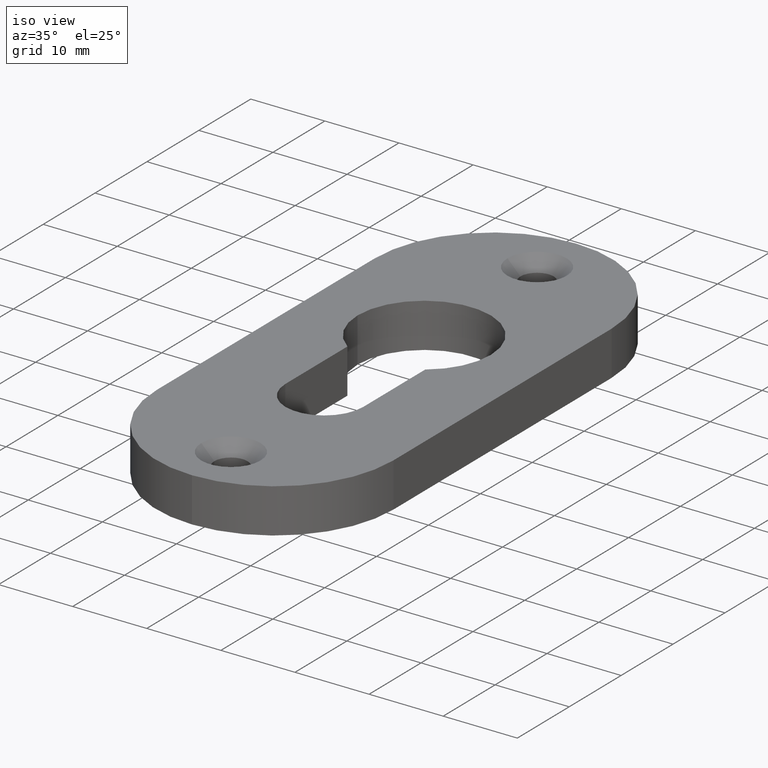
[diagram: clean part render]
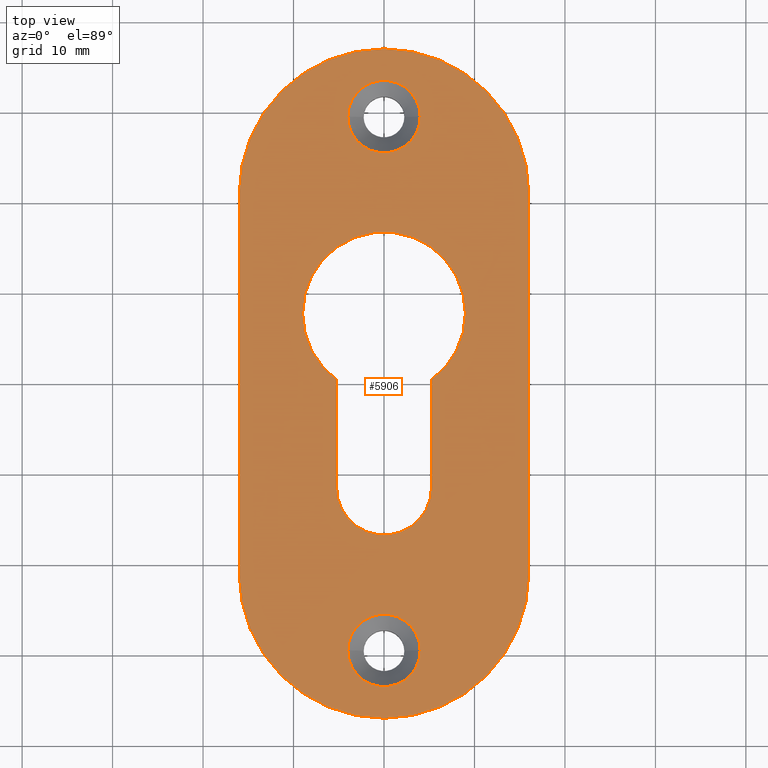
[diagram: tour spotlight — one face highlighted and labeled with its STEP entity id]
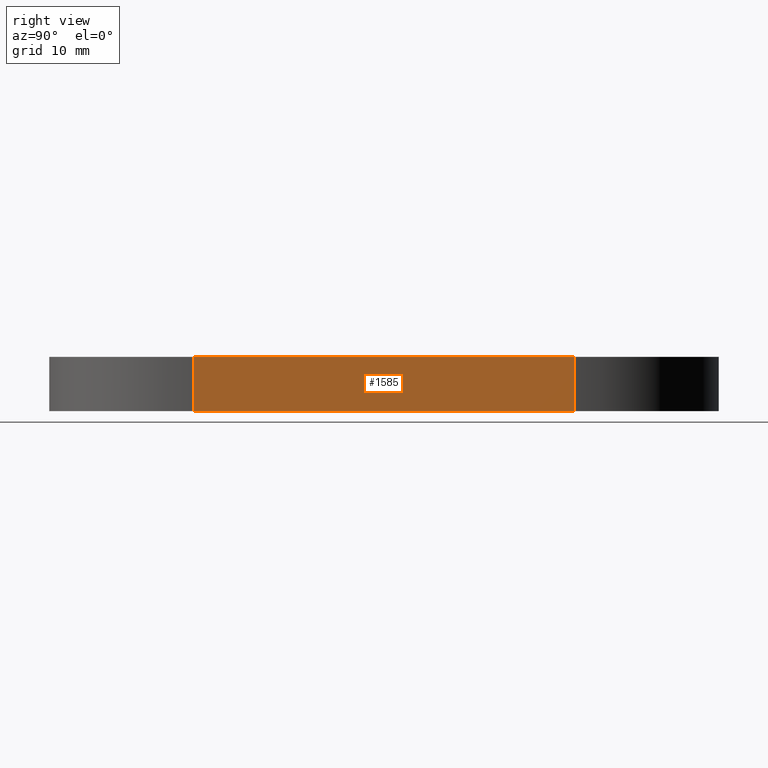
[diagram: tour spotlight — one face highlighted and labeled with its STEP entity id]
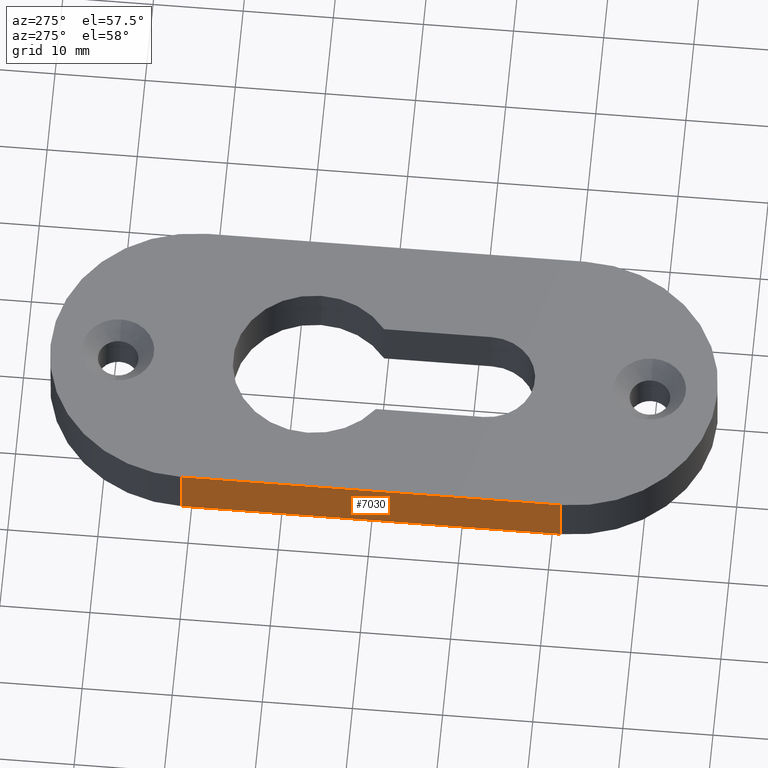
[diagram: tour spotlight — one face highlighted and labeled with its STEP entity id]
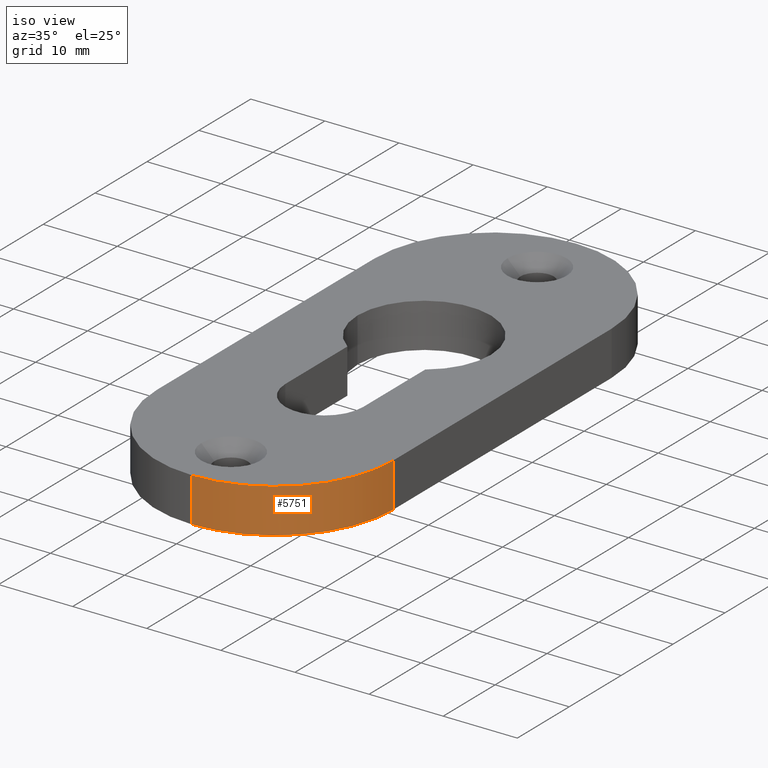
[diagram: tour spotlight — one face highlighted and labeled with its STEP entity id]
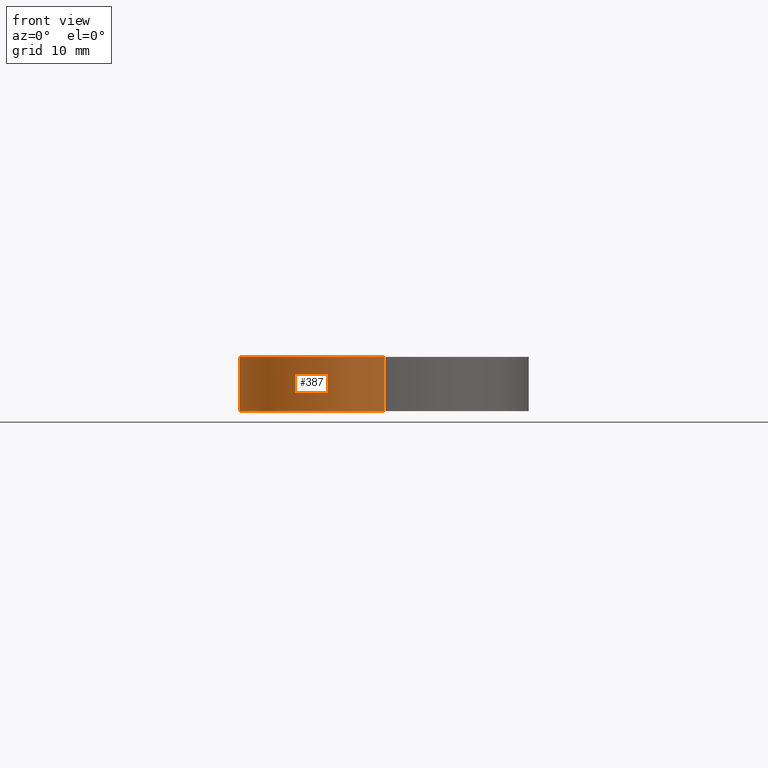
[diagram: tour spotlight — one face highlighted and labeled with its STEP entity id]
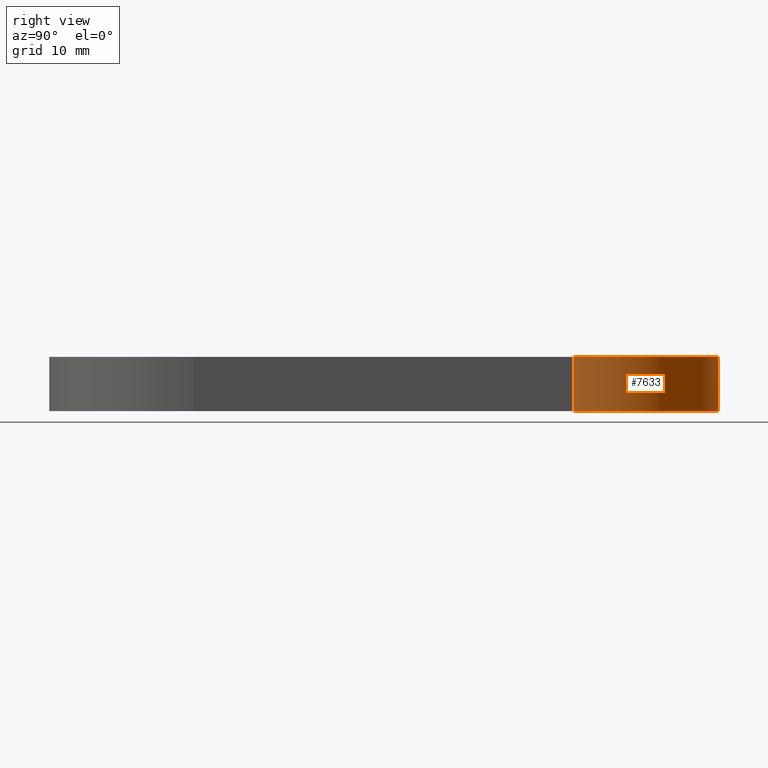
[diagram: tour spotlight — one face highlighted and labeled with its STEP entity id]
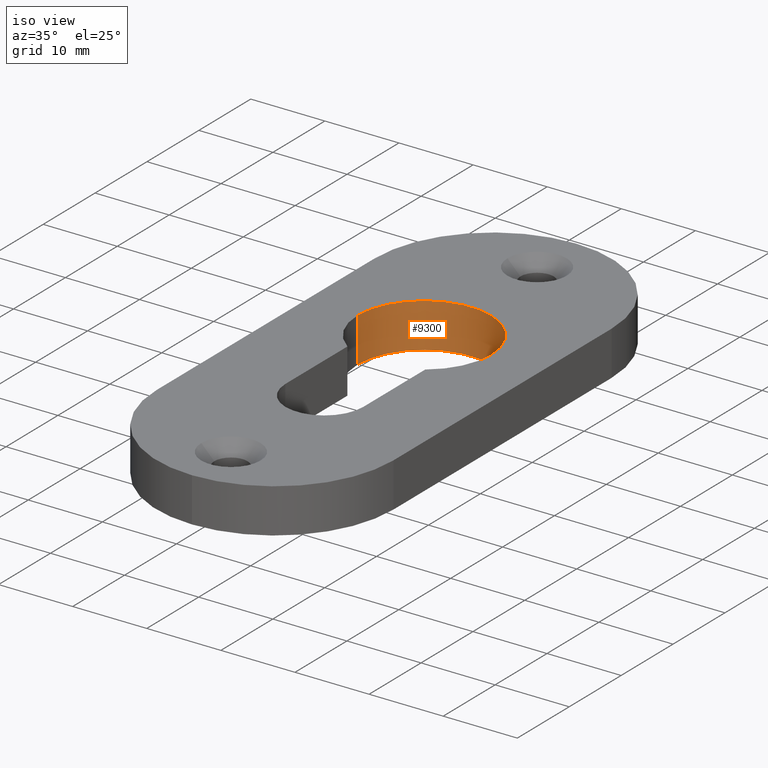
[diagram: tour spotlight — one face highlighted and labeled with its STEP entity id]
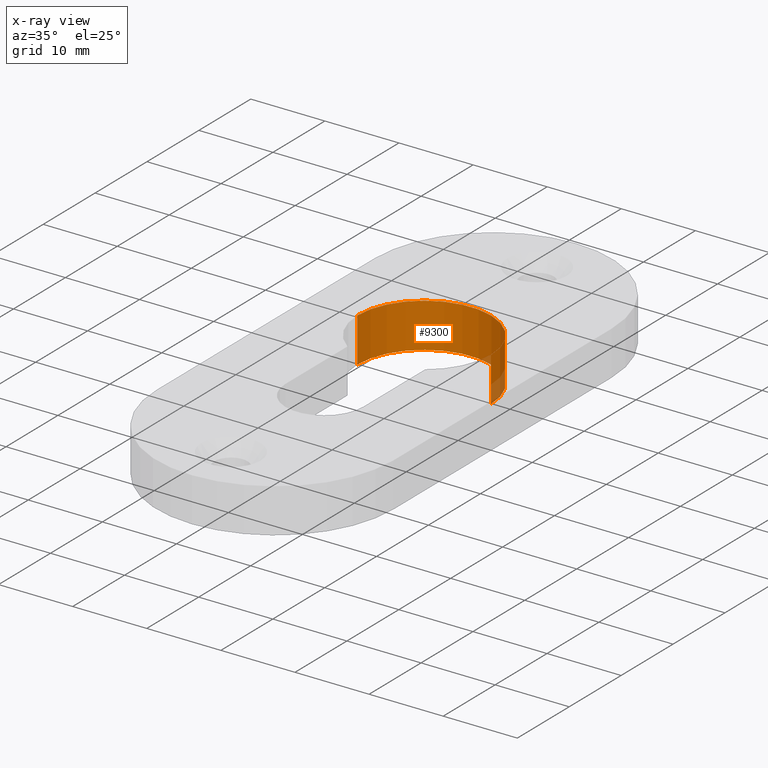
[diagram: x-ray of the same camera — body ghosted, this tour face saturated]
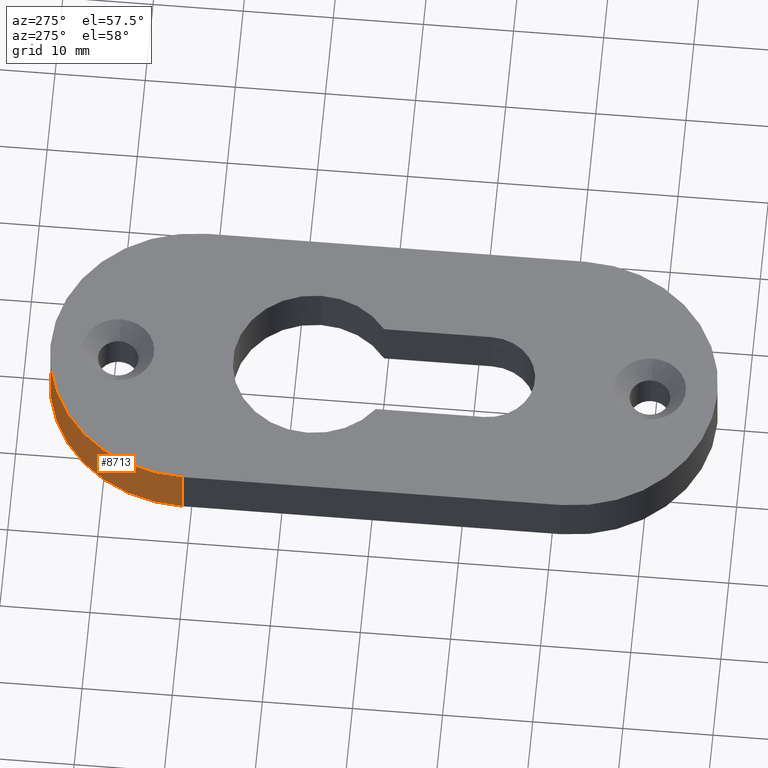
[diagram: tour spotlight — one face highlighted and labeled with its STEP entity id]
A machine part: a face-by-face anatomy tour. The part has 192 B-rep faces; the first image is the clean iso view, then the 8 largest visible faces are spotlighted one at a time (largest first), each with its STEP entity span.

Face 1 — top view, entity #5906. In plain terms, the highlighted planar face has unit normal (-0, 0, 1).
Definition (entity closure, byte-faithful):
#15 = EDGE_CURVE ( 'NONE', #9957, #5316, #8439, .T. ) ;
#37 = CIRCLE ( 'NONE', #7569, 5.250000000000001800 ) ;
#210 = CARTESIAN_POINT ( 'NONE',  ( 7.501506923142949900E-016, 20.99999999999999600, 6.000000000000000000 ) ) ;
#245 = DIRECTION ( 'NONE',  ( 1.000000000000000000, 0.0000000000000000000, 0.0000000000000000000 ) ) ;
#278 = CIRCLE ( 'NONE', #3665, 8.999999999999998200 ) ;
#324 = VECTOR ( 'NONE', #423, 1000.000000000000000 ) ;
#406 = VECTOR ( 'NONE', #2968, 1000.000000000000000 ) ;
#409 = EDGE_CURVE ( 'NONE', #4486, #8543, #5610, .T. ) ;
#423 = DIRECTION ( 'NONE',  ( 4.688441826964343700E-017, -1.000000000000000000, 0.0000000000000000000 ) ) ;
#551 = EDGE_LOOP ( 'NONE', ( #3701, #3144, #8468, #9737, #8320, #3300 ) ) ;
#555 = VERTEX_POINT ( 'NONE', #9657 ) ;
#571 = CIRCLE ( 'NONE', #1646, 4.000000000000003600 ) ;
#610 = AXIS2_PLACEMENT_3D ( 'NONE', #10126, #5369, #4509 ) ;
#672 = EDGE_CURVE ( 'NONE', #1767, #9563, #2412, .T. ) ;
#692 = VERTEX_POINT ( 'NONE', #7104 ) ;
#806 = CARTESIAN_POINT ( 'NONE',  ( 1.576732753902216800E-015, 7.750000000000001800, 6.000000000000000000 ) ) ;
#959 = EDGE_CURVE ( 'NONE', #1495, #2372, #5102, .T. ) ;
#1301 = EDGE_LOOP ( 'NONE', ( #3180, #5819 ) ) ;
#1479 = LINE ( 'NONE', #3137, #8104 ) ;
#1487 = EDGE_CURVE ( 'NONE', #692, #1767, #278, .T. ) ;
#1495 = VERTEX_POINT ( 'NONE', #5667 ) ;
#1529 = CIRCLE ( 'NONE', #10240, 16.00000000000000000 ) ;
#1646 = AXIS2_PLACEMENT_3D ( 'NONE', #3102, #9362, #10471 ) ;
#1686 = EDGE_CURVE ( 'NONE', #555, #3209, #1918, .T. ) ;
#1767 = VERTEX_POINT ( 'NONE', #5138 ) ;
#1883 = CIRCLE ( 'NONE', #610, 16.00000000000000000 ) ;
#1885 = EDGE_CURVE ( 'NONE', #7000, #1495, #37, .T. ) ;
#1918 = CIRCLE ( 'NONE', #4988, 16.00000000000000000 ) ;
#1963 = CIRCLE ( 'NONE', #2314, 4.000000000000003600 ) ;
#2043 = CARTESIAN_POINT ( 'NONE',  ( 0.0000000000000000000, 20.99999999999999600, 6.000000000000000000 ) ) ;
#2101 = CIRCLE ( 'NONE', #3656, 16.00000000000000000 ) ;
#2242 = AXIS2_PLACEMENT_3D ( 'NONE', #7933, #8767, #3863 ) ;
#2306 = DIRECTION ( 'NONE',  ( -0.0000000000000000000, 0.0000000000000000000, 1.000000000000000000 ) ) ;
#2314 = AXIS2_PLACEMENT_3D ( 'NONE', #7124, #4632, #3122 ) ;
#2372 = VERTEX_POINT ( 'NONE', #3607 ) ;
#2412 = CIRCLE ( 'NONE', #2242, 8.999999999999998200 ) ;
#2575 = CARTESIAN_POINT ( 'NONE',  ( 4.000000000000003600, -29.50000000000000000, 6.000000000000000000 ) ) ;
#2618 = FACE_OUTER_BOUND ( 'NONE', #3283, .T. ) ;
#2625 = EDGE_CURVE ( 'NONE', #8560, #6281, #1529, .T. ) ;
#2925 = CARTESIAN_POINT ( 'NONE',  ( 16.00000000000000000, 37.00000000000000000, 6.000000000000000000 ) ) ;
#2959 = LINE ( 'NONE', #10307, #324 ) ;
#2964 = CARTESIAN_POINT ( 'NONE',  ( 0.0000000000000000000, 29.50000000000000000, 6.000000000000000000 ) ) ;
#2968 = DIRECTION ( 'NONE',  ( -0.0000000000000000000, 1.000000000000000000, -0.0000000000000000000 ) ) ;
#3102 = CARTESIAN_POINT ( 'NONE',  ( 0.0000000000000000000, 29.50000000000000000, 6.000000000000000000 ) ) ;
#3109 = CIRCLE ( 'NONE', #10175, 4.000000000000003600 ) ;
#3122 = DIRECTION ( 'NONE',  ( 1.000000000000000000, 0.0000000000000000000, 0.0000000000000000000 ) ) ;
#3123 = DIRECTION ( 'NONE',  ( 1.000000000000000000, 0.0000000000000000000, 0.0000000000000000000 ) ) ;
#3137 = CARTESIAN_POINT ( 'NONE',  ( -5.250000000000001800, -11.50000000000000200, 6.000000000000000000 ) ) ;
#3144 = ORIENTED_EDGE ( 'NONE', *, *, #1885, .F. ) ;
#3180 = ORIENTED_EDGE ( 'NONE', *, *, #7485, .T. ) ;
#3209 = VERTEX_POINT ( 'NONE', #8442 ) ;
#3283 = EDGE_LOOP ( 'NONE', ( #9678, #3339, #8783, #3480, #9173, #9067 ) ) ;
#3300 = ORIENTED_EDGE ( 'NONE', *, *, #7817, .F. ) ;
#3339 = ORIENTED_EDGE ( 'NONE', *, *, #4749, .T. ) ;
#3480 = ORIENTED_EDGE ( 'NONE', *, *, #6473, .T. ) ;
#3523 = DIRECTION ( 'NONE',  ( -0.0000000000000000000, 0.0000000000000000000, 1.000000000000000000 ) ) ;
#3607 = CARTESIAN_POINT ( 'NONE',  ( 5.250000000000000000, 0.4399042413932808800, 6.000000000000000000 ) ) ;
#3656 = AXIS2_PLACEMENT_3D ( 'NONE', #2043, #9422, #5388 ) ;
#3665 = AXIS2_PLACEMENT_3D ( 'NONE', #806, #9811, #4917 ) ;
#3700 = CARTESIAN_POINT ( 'NONE',  ( -7.041719095097284800E-016, -11.50000000000000200, 6.000000000000000000 ) ) ;
#3701 = ORIENTED_EDGE ( 'NONE', *, *, #959, .F. ) ;
#3756 = FACE_BOUND ( 'NONE', #551, .T. ) ;
#3863 = DIRECTION ( 'NONE',  ( 1.000000000000000000, 0.0000000000000000000, 0.0000000000000000000 ) ) ;
#3966 = CARTESIAN_POINT ( 'NONE',  ( 5.250000000000000000, 0.4399042413932808800, 6.000000000000000000 ) ) ;
#4118 = CARTESIAN_POINT ( 'NONE',  ( 16.00000000000000000, 20.99999999999999600, 6.000000000000000000 ) ) ;
#4486 = VERTEX_POINT ( 'NONE', #10267 ) ;
#4509 = DIRECTION ( 'NONE',  ( 1.000000000000000000, 0.0000000000000000000, 0.0000000000000000000 ) ) ;
#4529 = DIRECTION ( 'NONE',  ( 1.000000000000000000, 0.0000000000000000000, 0.0000000000000000000 ) ) ;
#4632 = DIRECTION ( 'NONE',  ( 0.0000000000000000000, -0.0000000000000000000, -1.000000000000000000 ) ) ;
#4662 = FACE_BOUND ( 'NONE', #7414, .T. ) ;
#4749 = EDGE_CURVE ( 'NONE', #6281, #4486, #1883, .T. ) ;
#4873 = DIRECTION ( 'NONE',  ( -1.452878884876534100E-016, -1.000000000000000000, -0.0000000000000000000 ) ) ;
#4917 = DIRECTION ( 'NONE',  ( 1.000000000000000000, 0.0000000000000000000, 0.0000000000000000000 ) ) ;
#4962 = AXIS2_PLACEMENT_3D ( 'NONE', #2964, #9590, #5518 ) ;
#4988 = AXIS2_PLACEMENT_3D ( 'NONE', #210, #3523, #245 ) ;
#5057 = VERTEX_POINT ( 'NONE', #2575 ) ;
#5102 = LINE ( 'NONE', #3966, #8943 ) ;
#5138 = CARTESIAN_POINT ( 'NONE',  ( -8.999999999999996400, 7.750000000000001800, 6.000000000000000000 ) ) ;
#5316 = VERTEX_POINT ( 'NONE', #9001 ) ;
#5369 = DIRECTION ( 'NONE',  ( -0.0000000000000000000, 0.0000000000000000000, 1.000000000000000000 ) ) ;
#5388 = DIRECTION ( 'NONE',  ( 1.000000000000000000, 0.0000000000000000000, 0.0000000000000000000 ) ) ;
#5518 = DIRECTION ( 'NONE',  ( 1.000000000000000000, 0.0000000000000000000, 0.0000000000000000000 ) ) ;
#5610 = LINE ( 'NONE', #2925, #406 ) ;
#5642 = DIRECTION ( 'NONE',  ( 1.000000000000000000, 0.0000000000000000000, 0.0000000000000000000 ) ) ;
#5667 = CARTESIAN_POINT ( 'NONE',  ( 5.250000000000001800, -11.50000000000000200, 6.000000000000000000 ) ) ;
#5796 = DIRECTION ( 'NONE',  ( 1.000000000000000000, 0.0000000000000000000, 0.0000000000000000000 ) ) ;
#5819 = ORIENTED_EDGE ( 'NONE', *, *, #10095, .T. ) ;
#5870 = DIRECTION ( 'NONE',  ( -0.0000000000000000000, 0.0000000000000000000, 1.000000000000000000 ) ) ;
#5906 = ADVANCED_FACE ( 'NONE', ( #9793, #4662, #2618, #3756 ), #6519, .T. ) ;
#6134 = CARTESIAN_POINT ( 'NONE',  ( -4.000000000000003600, -29.50000000000000000, 6.000000000000000000 ) ) ;
#6281 = VERTEX_POINT ( 'NONE', #9328 ) ;
#6473 = EDGE_CURVE ( 'NONE', #8543, #555, #2101, .T. ) ;
#6519 = PLANE ( 'NONE',  #8469 ) ;
#6571 = CARTESIAN_POINT ( 'NONE',  ( -5.250000000000001800, -11.50000000000000200, 6.000000000000000000 ) ) ;
#6581 = DIRECTION ( 'NONE',  ( 0.0000000000000000000, -0.0000000000000000000, -1.000000000000000000 ) ) ;
#6604 = DIRECTION ( 'NONE',  ( 0.0000000000000000000, 0.0000000000000000000, 1.000000000000000000 ) ) ;
#7000 = VERTEX_POINT ( 'NONE', #6571 ) ;
#7104 = CARTESIAN_POINT ( 'NONE',  ( 9.000000000000000000, 7.750000000000002700, 6.000000000000000000 ) ) ;
#7124 = CARTESIAN_POINT ( 'NONE',  ( 0.0000000000000000000, -29.50000000000000000, 6.000000000000000000 ) ) ;
#7225 = AXIS2_PLACEMENT_3D ( 'NONE', #8149, #6604, #5642 ) ;
#7351 = EDGE_CURVE ( 'NONE', #9563, #7000, #1479, .T. ) ;
#7402 = CARTESIAN_POINT ( 'NONE',  ( 0.0000000000000000000, -29.50000000000000000, 6.000000000000000000 ) ) ;
#7414 = EDGE_LOOP ( 'NONE', ( #8074, #9388 ) ) ;
#7485 = EDGE_CURVE ( 'NONE', #5057, #9188, #3109, .T. ) ;
#7569 = AXIS2_PLACEMENT_3D ( 'NONE', #3700, #9221, #4529 ) ;
#7702 = CIRCLE ( 'NONE', #7225, 8.999999999999998200 ) ;
#7817 = EDGE_CURVE ( 'NONE', #2372, #692, #7702, .T. ) ;
#7933 = CARTESIAN_POINT ( 'NONE',  ( 1.576732753902216800E-015, 7.750000000000001800, 6.000000000000000000 ) ) ;
#7945 = CARTESIAN_POINT ( 'NONE',  ( 3.469446951953614200E-015, -20.99999999999999600, 6.000000000000000000 ) ) ;
#8074 = ORIENTED_EDGE ( 'NONE', *, *, #10270, .T. ) ;
#8104 = VECTOR ( 'NONE', #4873, 1000.000000000000000 ) ;
#8149 = CARTESIAN_POINT ( 'NONE',  ( 1.576732753902216800E-015, 7.750000000000001800, 6.000000000000000000 ) ) ;
#8309 = CARTESIAN_POINT ( 'NONE',  ( 0.0000000000000000000, 0.0000000000000000000, 6.000000000000000000 ) ) ;
#8320 = ORIENTED_EDGE ( 'NONE', *, *, #1487, .F. ) ;
#8340 = CARTESIAN_POINT ( 'NONE',  ( -15.99999999999999600, -20.99999999999999600, 6.000000000000000000 ) ) ;
#8439 = CIRCLE ( 'NONE', #4962, 4.000000000000003600 ) ;
#8442 = CARTESIAN_POINT ( 'NONE',  ( -16.00000000000000000, 20.99999999999999600, 6.000000000000000000 ) ) ;
#8468 = ORIENTED_EDGE ( 'NONE', *, *, #7351, .F. ) ;
#8469 = AXIS2_PLACEMENT_3D ( 'NONE', #8309, #5870, #3123 ) ;
#8543 = VERTEX_POINT ( 'NONE', #4118 ) ;
#8560 = VERTEX_POINT ( 'NONE', #8340 ) ;
#8623 = CARTESIAN_POINT ( 'NONE',  ( -5.250000000000000000, 0.4399042413932808800, 6.000000000000000000 ) ) ;
#8767 = DIRECTION ( 'NONE',  ( 0.0000000000000000000, 0.0000000000000000000, 1.000000000000000000 ) ) ;
#8783 = ORIENTED_EDGE ( 'NONE', *, *, #409, .T. ) ;
#8943 = VECTOR ( 'NONE', #9685, 1000.000000000000000 ) ;
#9001 = CARTESIAN_POINT ( 'NONE',  ( 4.000000000000003600, 29.50000000000000000, 6.000000000000000000 ) ) ;
#9067 = ORIENTED_EDGE ( 'NONE', *, *, #10036, .T. ) ;
#9173 = ORIENTED_EDGE ( 'NONE', *, *, #1686, .T. ) ;
#9188 = VERTEX_POINT ( 'NONE', #6134 ) ;
#9221 = DIRECTION ( 'NONE',  ( 0.0000000000000000000, 0.0000000000000000000, 1.000000000000000000 ) ) ;
#9284 = CARTESIAN_POINT ( 'NONE',  ( -4.000000000000003600, 29.50000000000000000, 6.000000000000000000 ) ) ;
#9328 = CARTESIAN_POINT ( 'NONE',  ( 3.469446951953614200E-015, -37.00000000000000000, 6.000000000000000000 ) ) ;
#9362 = DIRECTION ( 'NONE',  ( 0.0000000000000000000, -0.0000000000000000000, -1.000000000000000000 ) ) ;
#9388 = ORIENTED_EDGE ( 'NONE', *, *, #15, .T. ) ;
#9422 = DIRECTION ( 'NONE',  ( -0.0000000000000000000, 0.0000000000000000000, 1.000000000000000000 ) ) ;
#9511 = DIRECTION ( 'NONE',  ( 1.000000000000000000, 0.0000000000000000000, 0.0000000000000000000 ) ) ;
#9563 = VERTEX_POINT ( 'NONE', #8623 ) ;
#9590 = DIRECTION ( 'NONE',  ( 0.0000000000000000000, -0.0000000000000000000, -1.000000000000000000 ) ) ;
#9657 = CARTESIAN_POINT ( 'NONE',  ( 0.0000000000000000000, 37.00000000000000000, 6.000000000000000000 ) ) ;
#9678 = ORIENTED_EDGE ( 'NONE', *, *, #2625, .T. ) ;
#9685 = DIRECTION ( 'NONE',  ( -1.452878884876534100E-016, 1.000000000000000000, -0.0000000000000000000 ) ) ;
#9737 = ORIENTED_EDGE ( 'NONE', *, *, #672, .F. ) ;
#9793 = FACE_BOUND ( 'NONE', #1301, .T. ) ;
#9811 = DIRECTION ( 'NONE',  ( 0.0000000000000000000, 0.0000000000000000000, 1.000000000000000000 ) ) ;
#9957 = VERTEX_POINT ( 'NONE', #9284 ) ;
#10036 = EDGE_CURVE ( 'NONE', #3209, #8560, #2959, .T. ) ;
#10095 = EDGE_CURVE ( 'NONE', #9188, #5057, #1963, .T. ) ;
#10126 = CARTESIAN_POINT ( 'NONE',  ( 0.0000000000000000000, -20.99999999999999600, 6.000000000000000000 ) ) ;
#10175 = AXIS2_PLACEMENT_3D ( 'NONE', #7402, #6581, #5796 ) ;
#10240 = AXIS2_PLACEMENT_3D ( 'NONE', #7945, #2306, #9511 ) ;
#10267 = CARTESIAN_POINT ( 'NONE',  ( 16.00000000000000000, -20.99999999999999600, 6.000000000000000000 ) ) ;
#10270 = EDGE_CURVE ( 'NONE', #5316, #9957, #571, .T. ) ;
#10307 = CARTESIAN_POINT ( 'NONE',  ( -16.00000000000000000, 37.00000000000000000, 6.000000000000000000 ) ) ;
#10471 = DIRECTION ( 'NONE',  ( 1.000000000000000000, 0.0000000000000000000, 0.0000000000000000000 ) ) ;

Face 2 — right view, entity #1585. In plain terms, the highlighted planar face has unit normal (-1, 0, 0).
Definition (entity closure, byte-faithful):
#21 = ORIENTED_EDGE ( 'NONE', *, *, #9597, .T. ) ;
#69 = VERTEX_POINT ( 'NONE', #4767 ) ;
#202 = EDGE_CURVE ( 'NONE', #4486, #9030, #8182, .T. ) ;
#406 = VECTOR ( 'NONE', #2968, 1000.000000000000000 ) ;
#409 = EDGE_CURVE ( 'NONE', #4486, #8543, #5610, .T. ) ;
#852 = LINE ( 'NONE', #2850, #3095 ) ;
#1585 = ADVANCED_FACE ( 'NONE', ( #4448 ), #9091, .F. ) ;
#2326 = DIRECTION ( 'NONE',  ( 0.0000000000000000000, 0.0000000000000000000, -1.000000000000000000 ) ) ;
#2850 = CARTESIAN_POINT ( 'NONE',  ( 16.00000000000000000, 20.99999999999999600, 6.000000000000000000 ) ) ;
#2925 = CARTESIAN_POINT ( 'NONE',  ( 16.00000000000000000, 37.00000000000000000, 6.000000000000000000 ) ) ;
#2968 = DIRECTION ( 'NONE',  ( -0.0000000000000000000, 1.000000000000000000, -0.0000000000000000000 ) ) ;
#3095 = VECTOR ( 'NONE', #4397, 1000.000000000000000 ) ;
#3267 = DIRECTION ( 'NONE',  ( -0.0000000000000000000, 1.000000000000000000, -0.0000000000000000000 ) ) ;
#4118 = CARTESIAN_POINT ( 'NONE',  ( 16.00000000000000000, 20.99999999999999600, 6.000000000000000000 ) ) ;
#4256 = CARTESIAN_POINT ( 'NONE',  ( 16.00000000000000000, 37.00000000000000000, 6.000000000000000000 ) ) ;
#4397 = DIRECTION ( 'NONE',  ( -0.0000000000000000000, -0.0000000000000000000, 1.000000000000000000 ) ) ;
#4448 = FACE_OUTER_BOUND ( 'NONE', #7526, .T. ) ;
#4486 = VERTEX_POINT ( 'NONE', #10267 ) ;
#4767 = CARTESIAN_POINT ( 'NONE',  ( 16.00000000000000000, 20.99999999999999600, 0.0000000000000000000 ) ) ;
#4900 = LINE ( 'NONE', #7311, #9760 ) ;
#4980 = VECTOR ( 'NONE', #2326, 1000.000000000000000 ) ;
#5299 = EDGE_CURVE ( 'NONE', #9030, #69, #4900, .T. ) ;
#5610 = LINE ( 'NONE', #2925, #406 ) ;
#5805 = DIRECTION ( 'NONE',  ( 0.0000000000000000000, 0.0000000000000000000, 1.000000000000000000 ) ) ;
#5938 = AXIS2_PLACEMENT_3D ( 'NONE', #4256, #6726, #5805 ) ;
#6671 = CARTESIAN_POINT ( 'NONE',  ( 16.00000000000000000, -20.99999999999999600, 0.0000000000000000000 ) ) ;
#6726 = DIRECTION ( 'NONE',  ( -1.000000000000000000, 0.0000000000000000000, 0.0000000000000000000 ) ) ;
#7311 = CARTESIAN_POINT ( 'NONE',  ( 16.00000000000000000, 37.00000000000000000, 0.0000000000000000000 ) ) ;
#7526 = EDGE_LOOP ( 'NONE', ( #9988, #8272, #10237, #21 ) ) ;
#8122 = CARTESIAN_POINT ( 'NONE',  ( 16.00000000000000000, -20.99999999999999600, 6.000000000000000000 ) ) ;
#8182 = LINE ( 'NONE', #8122, #4980 ) ;
#8272 = ORIENTED_EDGE ( 'NONE', *, *, #202, .T. ) ;
#8543 = VERTEX_POINT ( 'NONE', #4118 ) ;
#9030 = VERTEX_POINT ( 'NONE', #6671 ) ;
#9091 = PLANE ( 'NONE',  #5938 ) ;
#9597 = EDGE_CURVE ( 'NONE', #69, #8543, #852, .T. ) ;
#9760 = VECTOR ( 'NONE', #3267, 1000.000000000000000 ) ;
#9988 = ORIENTED_EDGE ( 'NONE', *, *, #409, .F. ) ;
#10237 = ORIENTED_EDGE ( 'NONE', *, *, #5299, .T. ) ;
#10267 = CARTESIAN_POINT ( 'NONE',  ( 16.00000000000000000, -20.99999999999999600, 6.000000000000000000 ) ) ;

Face 3 — auxiliary view, entity #7030. In plain terms, the highlighted planar face has unit normal (1, 0, -0).
Definition (entity closure, byte-faithful):
#72 = EDGE_CURVE ( 'NONE', #5109, #430, #3308, .T. ) ;
#162 = VECTOR ( 'NONE', #8850, 1000.000000000000000 ) ;
#181 = DIRECTION ( 'NONE',  ( 1.000000000000000000, 4.688441826964343700E-017, -0.0000000000000000000 ) ) ;
#324 = VECTOR ( 'NONE', #423, 1000.000000000000000 ) ;
#423 = DIRECTION ( 'NONE',  ( 4.688441826964343700E-017, -1.000000000000000000, 0.0000000000000000000 ) ) ;
#430 = VERTEX_POINT ( 'NONE', #5656 ) ;
#696 = AXIS2_PLACEMENT_3D ( 'NONE', #10002, #181, #1865 ) ;
#734 = DIRECTION ( 'NONE',  ( 0.0000000000000000000, -0.0000000000000000000, 1.000000000000000000 ) ) ;
#1351 = LINE ( 'NONE', #8886, #10269 ) ;
#1865 = DIRECTION ( 'NONE',  ( -4.688441826964343700E-017, 1.000000000000000000, 0.0000000000000000000 ) ) ;
#2140 = VECTOR ( 'NONE', #734, 1000.000000000000000 ) ;
#2489 = ORIENTED_EDGE ( 'NONE', *, *, #10036, .F. ) ;
#2688 = EDGE_CURVE ( 'NONE', #430, #8560, #3942, .T. ) ;
#2868 = EDGE_LOOP ( 'NONE', ( #3808, #4047, #2489, #8017 ) ) ;
#2959 = LINE ( 'NONE', #10307, #324 ) ;
#3043 = CARTESIAN_POINT ( 'NONE',  ( -16.00000000000000000, 37.00000000000000000, 0.0000000000000000000 ) ) ;
#3209 = VERTEX_POINT ( 'NONE', #8442 ) ;
#3308 = LINE ( 'NONE', #3043, #162 ) ;
#3808 = ORIENTED_EDGE ( 'NONE', *, *, #72, .T. ) ;
#3942 = LINE ( 'NONE', #9742, #2140 ) ;
#4047 = ORIENTED_EDGE ( 'NONE', *, *, #2688, .T. ) ;
#5109 = VERTEX_POINT ( 'NONE', #5941 ) ;
#5656 = CARTESIAN_POINT ( 'NONE',  ( -15.99999999999999600, -20.99999999999999600, 0.0000000000000000000 ) ) ;
#5857 = PLANE ( 'NONE',  #696 ) ;
#5941 = CARTESIAN_POINT ( 'NONE',  ( -16.00000000000000000, 20.99999999999999600, 0.0000000000000000000 ) ) ;
#6106 = EDGE_CURVE ( 'NONE', #3209, #5109, #1351, .T. ) ;
#7030 = ADVANCED_FACE ( 'NONE', ( #10405 ), #5857, .F. ) ;
#8017 = ORIENTED_EDGE ( 'NONE', *, *, #6106, .T. ) ;
#8054 = DIRECTION ( 'NONE',  ( 0.0000000000000000000, 0.0000000000000000000, -1.000000000000000000 ) ) ;
#8340 = CARTESIAN_POINT ( 'NONE',  ( -15.99999999999999600, -20.99999999999999600, 6.000000000000000000 ) ) ;
#8442 = CARTESIAN_POINT ( 'NONE',  ( -16.00000000000000000, 20.99999999999999600, 6.000000000000000000 ) ) ;
#8560 = VERTEX_POINT ( 'NONE', #8340 ) ;
#8850 = DIRECTION ( 'NONE',  ( 4.688441826964343700E-017, -1.000000000000000000, 0.0000000000000000000 ) ) ;
#8886 = CARTESIAN_POINT ( 'NONE',  ( -16.00000000000000000, 20.99999999999999600, 6.000000000000000000 ) ) ;
#9742 = CARTESIAN_POINT ( 'NONE',  ( -15.99999999999999600, -20.99999999999999600, 6.000000000000000000 ) ) ;
#10002 = CARTESIAN_POINT ( 'NONE',  ( -16.00000000000000000, 37.00000000000000000, 6.000000000000000000 ) ) ;
#10036 = EDGE_CURVE ( 'NONE', #3209, #8560, #2959, .T. ) ;
#10269 = VECTOR ( 'NONE', #8054, 1000.000000000000000 ) ;
#10307 = CARTESIAN_POINT ( 'NONE',  ( -16.00000000000000000, 37.00000000000000000, 6.000000000000000000 ) ) ;
#10405 = FACE_OUTER_BOUND ( 'NONE', #2868, .T. ) ;

Face 4 — iso view, entity #5751. In plain terms, the highlighted cylindrical surface (partial cylindrical patch) has radius 16 mm, axis along (0, 0, -1).
Definition (entity closure, byte-faithful):
#83 = AXIS2_PLACEMENT_3D ( 'NONE', #650, #5583, #3829 ) ;
#202 = EDGE_CURVE ( 'NONE', #4486, #9030, #8182, .T. ) ;
#610 = AXIS2_PLACEMENT_3D ( 'NONE', #10126, #5369, #4509 ) ;
#650 = CARTESIAN_POINT ( 'NONE',  ( 0.0000000000000000000, -20.99999999999999600, 6.000000000000000000 ) ) ;
#907 = CARTESIAN_POINT ( 'NONE',  ( 3.469446951953614200E-015, -37.00000000000000000, 0.0000000000000000000 ) ) ;
#1407 = EDGE_LOOP ( 'NONE', ( #3802, #7801, #9354, #8028 ) ) ;
#1549 = VERTEX_POINT ( 'NONE', #907 ) ;
#1881 = CARTESIAN_POINT ( 'NONE',  ( 0.0000000000000000000, -20.99999999999999600, 0.0000000000000000000 ) ) ;
#1883 = CIRCLE ( 'NONE', #610, 16.00000000000000000 ) ;
#2326 = DIRECTION ( 'NONE',  ( 0.0000000000000000000, 0.0000000000000000000, -1.000000000000000000 ) ) ;
#2358 = EDGE_CURVE ( 'NONE', #6281, #1549, #4839, .T. ) ;
#3602 = AXIS2_PLACEMENT_3D ( 'NONE', #1881, #5087, #5056 ) ;
#3673 = VECTOR ( 'NONE', #8415, 1000.000000000000000 ) ;
#3802 = ORIENTED_EDGE ( 'NONE', *, *, #4749, .F. ) ;
#3829 = DIRECTION ( 'NONE',  ( -1.000000000000000000, 0.0000000000000000000, 0.0000000000000000000 ) ) ;
#4158 = CYLINDRICAL_SURFACE ( 'NONE', #83, 16.00000000000000000 ) ;
#4486 = VERTEX_POINT ( 'NONE', #10267 ) ;
#4509 = DIRECTION ( 'NONE',  ( 1.000000000000000000, 0.0000000000000000000, 0.0000000000000000000 ) ) ;
#4749 = EDGE_CURVE ( 'NONE', #6281, #4486, #1883, .T. ) ;
#4839 = LINE ( 'NONE', #6587, #3673 ) ;
#4980 = VECTOR ( 'NONE', #2326, 1000.000000000000000 ) ;
#5056 = DIRECTION ( 'NONE',  ( 1.000000000000000000, 0.0000000000000000000, 0.0000000000000000000 ) ) ;
#5087 = DIRECTION ( 'NONE',  ( 0.0000000000000000000, -0.0000000000000000000, -1.000000000000000000 ) ) ;
#5369 = DIRECTION ( 'NONE',  ( -0.0000000000000000000, 0.0000000000000000000, 1.000000000000000000 ) ) ;
#5583 = DIRECTION ( 'NONE',  ( 0.0000000000000000000, 0.0000000000000000000, -1.000000000000000000 ) ) ;
#5751 = ADVANCED_FACE ( 'NONE', ( #9271 ), #4158, .T. ) ;
#6281 = VERTEX_POINT ( 'NONE', #9328 ) ;
#6587 = CARTESIAN_POINT ( 'NONE',  ( 3.469446951953614200E-015, -37.00000000000000000, 6.000000000000000000 ) ) ;
#6671 = CARTESIAN_POINT ( 'NONE',  ( 16.00000000000000000, -20.99999999999999600, 0.0000000000000000000 ) ) ;
#7801 = ORIENTED_EDGE ( 'NONE', *, *, #2358, .T. ) ;
#8028 = ORIENTED_EDGE ( 'NONE', *, *, #202, .F. ) ;
#8122 = CARTESIAN_POINT ( 'NONE',  ( 16.00000000000000000, -20.99999999999999600, 6.000000000000000000 ) ) ;
#8182 = LINE ( 'NONE', #8122, #4980 ) ;
#8415 = DIRECTION ( 'NONE',  ( -0.0000000000000000000, 0.0000000000000000000, -1.000000000000000000 ) ) ;
#9030 = VERTEX_POINT ( 'NONE', #6671 ) ;
#9271 = FACE_OUTER_BOUND ( 'NONE', #1407, .T. ) ;
#9328 = CARTESIAN_POINT ( 'NONE',  ( 3.469446951953614200E-015, -37.00000000000000000, 6.000000000000000000 ) ) ;
#9354 = ORIENTED_EDGE ( 'NONE', *, *, #9466, .F. ) ;
#9466 = EDGE_CURVE ( 'NONE', #9030, #1549, #10393, .T. ) ;
#10126 = CARTESIAN_POINT ( 'NONE',  ( 0.0000000000000000000, -20.99999999999999600, 6.000000000000000000 ) ) ;
#10267 = CARTESIAN_POINT ( 'NONE',  ( 16.00000000000000000, -20.99999999999999600, 6.000000000000000000 ) ) ;
#10393 = CIRCLE ( 'NONE', #3602, 16.00000000000000000 ) ;

Face 5 — front view, entity #387. In plain terms, the highlighted cylindrical surface (partial cylindrical patch) has radius 16 mm, axis along (-0, 0, -1).
Definition (entity closure, byte-faithful):
#387 = ADVANCED_FACE ( 'NONE', ( #6386 ), #1540, .T. ) ;
#430 = VERTEX_POINT ( 'NONE', #5656 ) ;
#734 = DIRECTION ( 'NONE',  ( 0.0000000000000000000, -0.0000000000000000000, 1.000000000000000000 ) ) ;
#907 = CARTESIAN_POINT ( 'NONE',  ( 3.469446951953614200E-015, -37.00000000000000000, 0.0000000000000000000 ) ) ;
#1529 = CIRCLE ( 'NONE', #10240, 16.00000000000000000 ) ;
#1540 = CYLINDRICAL_SURFACE ( 'NONE', #6275, 16.00000000000000000 ) ;
#1549 = VERTEX_POINT ( 'NONE', #907 ) ;
#1738 = EDGE_LOOP ( 'NONE', ( #6670, #5376, #1755, #3126 ) ) ;
#1755 = ORIENTED_EDGE ( 'NONE', *, *, #2688, .F. ) ;
#2123 = DIRECTION ( 'NONE',  ( -0.0000000000000000000, 0.0000000000000000000, -1.000000000000000000 ) ) ;
#2140 = VECTOR ( 'NONE', #734, 1000.000000000000000 ) ;
#2306 = DIRECTION ( 'NONE',  ( -0.0000000000000000000, 0.0000000000000000000, 1.000000000000000000 ) ) ;
#2358 = EDGE_CURVE ( 'NONE', #6281, #1549, #4839, .T. ) ;
#2625 = EDGE_CURVE ( 'NONE', #8560, #6281, #1529, .T. ) ;
#2688 = EDGE_CURVE ( 'NONE', #430, #8560, #3942, .T. ) ;
#3005 = CARTESIAN_POINT ( 'NONE',  ( 3.469446951953614200E-015, -20.99999999999999600, 6.000000000000000000 ) ) ;
#3126 = ORIENTED_EDGE ( 'NONE', *, *, #6534, .F. ) ;
#3455 = AXIS2_PLACEMENT_3D ( 'NONE', #4560, #10274, #7136 ) ;
#3673 = VECTOR ( 'NONE', #8415, 1000.000000000000000 ) ;
#3942 = LINE ( 'NONE', #9742, #2140 ) ;
#4560 = CARTESIAN_POINT ( 'NONE',  ( 3.469446951953614200E-015, -20.99999999999999600, 0.0000000000000000000 ) ) ;
#4839 = LINE ( 'NONE', #6587, #3673 ) ;
#5376 = ORIENTED_EDGE ( 'NONE', *, *, #2625, .F. ) ;
#5656 = CARTESIAN_POINT ( 'NONE',  ( -15.99999999999999600, -20.99999999999999600, 0.0000000000000000000 ) ) ;
#6275 = AXIS2_PLACEMENT_3D ( 'NONE', #3005, #2123, #9442 ) ;
#6281 = VERTEX_POINT ( 'NONE', #9328 ) ;
#6386 = FACE_OUTER_BOUND ( 'NONE', #1738, .T. ) ;
#6534 = EDGE_CURVE ( 'NONE', #1549, #430, #7723, .T. ) ;
#6587 = CARTESIAN_POINT ( 'NONE',  ( 3.469446951953614200E-015, -37.00000000000000000, 6.000000000000000000 ) ) ;
#6670 = ORIENTED_EDGE ( 'NONE', *, *, #2358, .F. ) ;
#7136 = DIRECTION ( 'NONE',  ( 1.000000000000000000, 0.0000000000000000000, 0.0000000000000000000 ) ) ;
#7723 = CIRCLE ( 'NONE', #3455, 16.00000000000000000 ) ;
#7945 = CARTESIAN_POINT ( 'NONE',  ( 3.469446951953614200E-015, -20.99999999999999600, 6.000000000000000000 ) ) ;
#8340 = CARTESIAN_POINT ( 'NONE',  ( -15.99999999999999600, -20.99999999999999600, 6.000000000000000000 ) ) ;
#8415 = DIRECTION ( 'NONE',  ( -0.0000000000000000000, 0.0000000000000000000, -1.000000000000000000 ) ) ;
#8560 = VERTEX_POINT ( 'NONE', #8340 ) ;
#9328 = CARTESIAN_POINT ( 'NONE',  ( 3.469446951953614200E-015, -37.00000000000000000, 6.000000000000000000 ) ) ;
#9442 = DIRECTION ( 'NONE',  ( -1.000000000000000000, 0.0000000000000000000, 0.0000000000000000000 ) ) ;
#9511 = DIRECTION ( 'NONE',  ( 1.000000000000000000, 0.0000000000000000000, 0.0000000000000000000 ) ) ;
#9742 = CARTESIAN_POINT ( 'NONE',  ( -15.99999999999999600, -20.99999999999999600, 6.000000000000000000 ) ) ;
#10240 = AXIS2_PLACEMENT_3D ( 'NONE', #7945, #2306, #9511 ) ;
#10274 = DIRECTION ( 'NONE',  ( 0.0000000000000000000, -0.0000000000000000000, -1.000000000000000000 ) ) ;

Face 6 — right view, entity #7633. In plain terms, the highlighted cylindrical surface (partial cylindrical patch) has radius 16 mm, axis along (0, 0, -1).
Definition (entity closure, byte-faithful):
#69 = VERTEX_POINT ( 'NONE', #4767 ) ;
#97 = DIRECTION ( 'NONE',  ( 1.000000000000000000, 0.0000000000000000000, 0.0000000000000000000 ) ) ;
#282 = ORIENTED_EDGE ( 'NONE', *, *, #1161, .T. ) ;
#544 = AXIS2_PLACEMENT_3D ( 'NONE', #2702, #5319, #4525 ) ;
#555 = VERTEX_POINT ( 'NONE', #9657 ) ;
#852 = LINE ( 'NONE', #2850, #3095 ) ;
#1161 = EDGE_CURVE ( 'NONE', #8516, #555, #10324, .T. ) ;
#1210 = FACE_OUTER_BOUND ( 'NONE', #3810, .T. ) ;
#1639 = CARTESIAN_POINT ( 'NONE',  ( 0.0000000000000000000, 37.00000000000000000, 0.0000000000000000000 ) ) ;
#2043 = CARTESIAN_POINT ( 'NONE',  ( 0.0000000000000000000, 20.99999999999999600, 6.000000000000000000 ) ) ;
#2101 = CIRCLE ( 'NONE', #3656, 16.00000000000000000 ) ;
#2375 = DIRECTION ( 'NONE',  ( 0.0000000000000000000, -0.0000000000000000000, -1.000000000000000000 ) ) ;
#2702 = CARTESIAN_POINT ( 'NONE',  ( 0.0000000000000000000, 20.99999999999999600, 6.000000000000000000 ) ) ;
#2850 = CARTESIAN_POINT ( 'NONE',  ( 16.00000000000000000, 20.99999999999999600, 6.000000000000000000 ) ) ;
#2900 = ORIENTED_EDGE ( 'NONE', *, *, #9597, .F. ) ;
#3094 = CYLINDRICAL_SURFACE ( 'NONE', #544, 16.00000000000000000 ) ;
#3095 = VECTOR ( 'NONE', #4397, 1000.000000000000000 ) ;
#3235 = CARTESIAN_POINT ( 'NONE',  ( 0.0000000000000000000, 37.00000000000000000, 6.000000000000000000 ) ) ;
#3656 = AXIS2_PLACEMENT_3D ( 'NONE', #2043, #9422, #5388 ) ;
#3810 = EDGE_LOOP ( 'NONE', ( #9998, #2900, #4209, #282 ) ) ;
#4118 = CARTESIAN_POINT ( 'NONE',  ( 16.00000000000000000, 20.99999999999999600, 6.000000000000000000 ) ) ;
#4209 = ORIENTED_EDGE ( 'NONE', *, *, #6123, .F. ) ;
#4397 = DIRECTION ( 'NONE',  ( -0.0000000000000000000, -0.0000000000000000000, 1.000000000000000000 ) ) ;
#4525 = DIRECTION ( 'NONE',  ( -1.000000000000000000, 0.0000000000000000000, 0.0000000000000000000 ) ) ;
#4547 = AXIS2_PLACEMENT_3D ( 'NONE', #4946, #2375, #97 ) ;
#4569 = VECTOR ( 'NONE', #8102, 1000.000000000000000 ) ;
#4767 = CARTESIAN_POINT ( 'NONE',  ( 16.00000000000000000, 20.99999999999999600, 0.0000000000000000000 ) ) ;
#4946 = CARTESIAN_POINT ( 'NONE',  ( 0.0000000000000000000, 20.99999999999999600, 0.0000000000000000000 ) ) ;
#5319 = DIRECTION ( 'NONE',  ( 0.0000000000000000000, 0.0000000000000000000, -1.000000000000000000 ) ) ;
#5388 = DIRECTION ( 'NONE',  ( 1.000000000000000000, 0.0000000000000000000, 0.0000000000000000000 ) ) ;
#6123 = EDGE_CURVE ( 'NONE', #8516, #69, #6947, .T. ) ;
#6473 = EDGE_CURVE ( 'NONE', #8543, #555, #2101, .T. ) ;
#6947 = CIRCLE ( 'NONE', #4547, 16.00000000000000000 ) ;
#7633 = ADVANCED_FACE ( 'NONE', ( #1210 ), #3094, .T. ) ;
#8102 = DIRECTION ( 'NONE',  ( -0.0000000000000000000, -0.0000000000000000000, 1.000000000000000000 ) ) ;
#8516 = VERTEX_POINT ( 'NONE', #1639 ) ;
#8543 = VERTEX_POINT ( 'NONE', #4118 ) ;
#9422 = DIRECTION ( 'NONE',  ( -0.0000000000000000000, 0.0000000000000000000, 1.000000000000000000 ) ) ;
#9597 = EDGE_CURVE ( 'NONE', #69, #8543, #852, .T. ) ;
#9657 = CARTESIAN_POINT ( 'NONE',  ( 0.0000000000000000000, 37.00000000000000000, 6.000000000000000000 ) ) ;
#9998 = ORIENTED_EDGE ( 'NONE', *, *, #6473, .F. ) ;
#10324 = LINE ( 'NONE', #3235, #4569 ) ;

Face 7 — iso view, entity #9300. An x-ray twin of the same camera follows (body ghosted, this face saturated) — the face is partly hidden behind the body. In plain terms, the highlighted cylindrical surface (partial cylindrical patch) has radius 9 mm, axis along (-0, -0, -1).
Definition (entity closure, byte-faithful):
#170 = AXIS2_PLACEMENT_3D ( 'NONE', #8745, #2271, #5556 ) ;
#278 = CIRCLE ( 'NONE', #3665, 8.999999999999998200 ) ;
#455 = CYLINDRICAL_SURFACE ( 'NONE', #170, 8.999999999999998200 ) ;
#651 = CIRCLE ( 'NONE', #2444, 8.999999999999998200 ) ;
#692 = VERTEX_POINT ( 'NONE', #7104 ) ;
#806 = CARTESIAN_POINT ( 'NONE',  ( 1.576732753902216800E-015, 7.750000000000001800, 6.000000000000000000 ) ) ;
#815 = ORIENTED_EDGE ( 'NONE', *, *, #4396, .F. ) ;
#1062 = CARTESIAN_POINT ( 'NONE',  ( 9.000000000000000000, 7.750000000000002700, 6.000000000000000000 ) ) ;
#1137 = VECTOR ( 'NONE', #4972, 1000.000000000000000 ) ;
#1487 = EDGE_CURVE ( 'NONE', #692, #1767, #278, .T. ) ;
#1767 = VERTEX_POINT ( 'NONE', #5138 ) ;
#1996 = CARTESIAN_POINT ( 'NONE',  ( 9.000000000000000000, 7.750000000000002700, 0.0000000000000000000 ) ) ;
#2082 = EDGE_CURVE ( 'NONE', #10022, #9704, #651, .T. ) ;
#2271 = DIRECTION ( 'NONE',  ( -0.0000000000000000000, -0.0000000000000000000, -1.000000000000000000 ) ) ;
#2444 = AXIS2_PLACEMENT_3D ( 'NONE', #6482, #5729, #4761 ) ;
#2914 = CARTESIAN_POINT ( 'NONE',  ( -8.999999999999996400, 7.750000000000001800, 0.0000000000000000000 ) ) ;
#3665 = AXIS2_PLACEMENT_3D ( 'NONE', #806, #9811, #4917 ) ;
#4017 = LINE ( 'NONE', #6677, #5811 ) ;
#4275 = DIRECTION ( 'NONE',  ( -0.0000000000000000000, -0.0000000000000000000, -1.000000000000000000 ) ) ;
#4396 = EDGE_CURVE ( 'NONE', #692, #10022, #7875, .T. ) ;
#4761 = DIRECTION ( 'NONE',  ( 1.000000000000000000, 0.0000000000000000000, 0.0000000000000000000 ) ) ;
#4917 = DIRECTION ( 'NONE',  ( 1.000000000000000000, 0.0000000000000000000, 0.0000000000000000000 ) ) ;
#4972 = DIRECTION ( 'NONE',  ( -0.0000000000000000000, -0.0000000000000000000, -1.000000000000000000 ) ) ;
#5138 = CARTESIAN_POINT ( 'NONE',  ( -8.999999999999996400, 7.750000000000001800, 6.000000000000000000 ) ) ;
#5288 = EDGE_LOOP ( 'NONE', ( #815, #5562, #8100, #5487 ) ) ;
#5487 = ORIENTED_EDGE ( 'NONE', *, *, #2082, .F. ) ;
#5556 = DIRECTION ( 'NONE',  ( -1.000000000000000000, 0.0000000000000000000, 0.0000000000000000000 ) ) ;
#5562 = ORIENTED_EDGE ( 'NONE', *, *, #1487, .T. ) ;
#5729 = DIRECTION ( 'NONE',  ( 0.0000000000000000000, 0.0000000000000000000, 1.000000000000000000 ) ) ;
#5811 = VECTOR ( 'NONE', #4275, 1000.000000000000000 ) ;
#6052 = FACE_OUTER_BOUND ( 'NONE', #5288, .T. ) ;
#6482 = CARTESIAN_POINT ( 'NONE',  ( 1.576732753902216800E-015, 7.750000000000001800, 0.0000000000000000000 ) ) ;
#6677 = CARTESIAN_POINT ( 'NONE',  ( -8.999999999999996400, 7.750000000000001800, 6.000000000000000000 ) ) ;
#6990 = EDGE_CURVE ( 'NONE', #1767, #9704, #4017, .T. ) ;
#7104 = CARTESIAN_POINT ( 'NONE',  ( 9.000000000000000000, 7.750000000000002700, 6.000000000000000000 ) ) ;
#7875 = LINE ( 'NONE', #1062, #1137 ) ;
#8100 = ORIENTED_EDGE ( 'NONE', *, *, #6990, .T. ) ;
#8745 = CARTESIAN_POINT ( 'NONE',  ( 1.576732753902216800E-015, 7.750000000000001800, 6.000000000000000000 ) ) ;
#9300 = ADVANCED_FACE ( 'NONE', ( #6052 ), #455, .F. ) ;
#9704 = VERTEX_POINT ( 'NONE', #2914 ) ;
#9811 = DIRECTION ( 'NONE',  ( 0.0000000000000000000, 0.0000000000000000000, 1.000000000000000000 ) ) ;
#10022 = VERTEX_POINT ( 'NONE', #1996 ) ;

Face 8 — auxiliary view, entity #8713. In plain terms, the highlighted cylindrical surface (partial cylindrical patch) has radius 16 mm, axis along (0, 0, -1).
Definition (entity closure, byte-faithful):
#210 = CARTESIAN_POINT ( 'NONE',  ( 7.501506923142949900E-016, 20.99999999999999600, 6.000000000000000000 ) ) ;
#245 = DIRECTION ( 'NONE',  ( 1.000000000000000000, 0.0000000000000000000, 0.0000000000000000000 ) ) ;
#465 = DIRECTION ( 'NONE',  ( 1.000000000000000000, 0.0000000000000000000, 0.0000000000000000000 ) ) ;
#555 = VERTEX_POINT ( 'NONE', #9657 ) ;
#1161 = EDGE_CURVE ( 'NONE', #8516, #555, #10324, .T. ) ;
#1267 = CIRCLE ( 'NONE', #7312, 16.00000000000000000 ) ;
#1351 = LINE ( 'NONE', #8886, #10269 ) ;
#1639 = CARTESIAN_POINT ( 'NONE',  ( 0.0000000000000000000, 37.00000000000000000, 0.0000000000000000000 ) ) ;
#1686 = EDGE_CURVE ( 'NONE', #555, #3209, #1918, .T. ) ;
#1918 = CIRCLE ( 'NONE', #4988, 16.00000000000000000 ) ;
#2067 = ORIENTED_EDGE ( 'NONE', *, *, #2946, .F. ) ;
#2500 = ORIENTED_EDGE ( 'NONE', *, *, #6106, .F. ) ;
#2946 = EDGE_CURVE ( 'NONE', #5109, #8516, #1267, .T. ) ;
#3209 = VERTEX_POINT ( 'NONE', #8442 ) ;
#3235 = CARTESIAN_POINT ( 'NONE',  ( 0.0000000000000000000, 37.00000000000000000, 6.000000000000000000 ) ) ;
#3523 = DIRECTION ( 'NONE',  ( -0.0000000000000000000, 0.0000000000000000000, 1.000000000000000000 ) ) ;
#3534 = ORIENTED_EDGE ( 'NONE', *, *, #1161, .F. ) ;
#4569 = VECTOR ( 'NONE', #8102, 1000.000000000000000 ) ;
#4988 = AXIS2_PLACEMENT_3D ( 'NONE', #210, #3523, #245 ) ;
#5109 = VERTEX_POINT ( 'NONE', #5941 ) ;
#5931 = ORIENTED_EDGE ( 'NONE', *, *, #1686, .F. ) ;
#5941 = CARTESIAN_POINT ( 'NONE',  ( -16.00000000000000000, 20.99999999999999600, 0.0000000000000000000 ) ) ;
#6106 = EDGE_CURVE ( 'NONE', #3209, #5109, #1351, .T. ) ;
#6791 = DIRECTION ( 'NONE',  ( 0.0000000000000000000, 0.0000000000000000000, -1.000000000000000000 ) ) ;
#7312 = AXIS2_PLACEMENT_3D ( 'NONE', #10217, #7890, #465 ) ;
#7387 = EDGE_LOOP ( 'NONE', ( #2500, #5931, #3534, #2067 ) ) ;
#7536 = CARTESIAN_POINT ( 'NONE',  ( 7.501506923142949900E-016, 20.99999999999999600, 6.000000000000000000 ) ) ;
#7890 = DIRECTION ( 'NONE',  ( 0.0000000000000000000, -0.0000000000000000000, -1.000000000000000000 ) ) ;
#8054 = DIRECTION ( 'NONE',  ( 0.0000000000000000000, 0.0000000000000000000, -1.000000000000000000 ) ) ;
#8102 = DIRECTION ( 'NONE',  ( -0.0000000000000000000, -0.0000000000000000000, 1.000000000000000000 ) ) ;
#8442 = CARTESIAN_POINT ( 'NONE',  ( -16.00000000000000000, 20.99999999999999600, 6.000000000000000000 ) ) ;
#8516 = VERTEX_POINT ( 'NONE', #1639 ) ;
#8713 = ADVANCED_FACE ( 'NONE', ( #10264 ), #9904, .T. ) ;
#8886 = CARTESIAN_POINT ( 'NONE',  ( -16.00000000000000000, 20.99999999999999600, 6.000000000000000000 ) ) ;
#9093 = AXIS2_PLACEMENT_3D ( 'NONE', #7536, #6791, #9225 ) ;
#9225 = DIRECTION ( 'NONE',  ( -1.000000000000000000, 0.0000000000000000000, 0.0000000000000000000 ) ) ;
#9657 = CARTESIAN_POINT ( 'NONE',  ( 0.0000000000000000000, 37.00000000000000000, 6.000000000000000000 ) ) ;
#9904 = CYLINDRICAL_SURFACE ( 'NONE', #9093, 16.00000000000000000 ) ;
#10217 = CARTESIAN_POINT ( 'NONE',  ( 7.501506923142949900E-016, 20.99999999999999600, 0.0000000000000000000 ) ) ;
#10264 = FACE_OUTER_BOUND ( 'NONE', #7387, .T. ) ;
#10269 = VECTOR ( 'NONE', #8054, 1000.000000000000000 ) ;
#10324 = LINE ( 'NONE', #3235, #4569 ) ;